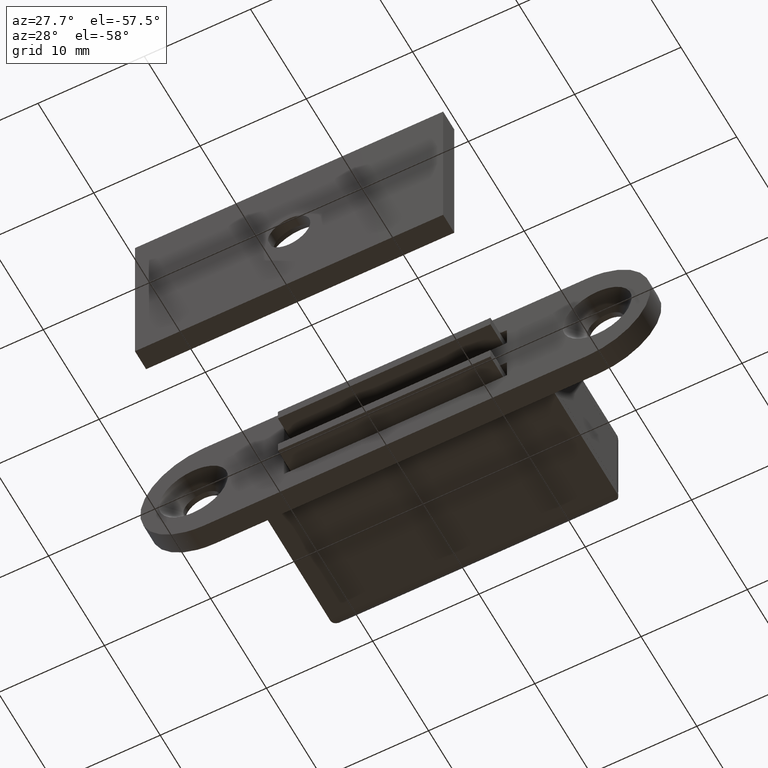
[diagram: clean part render]
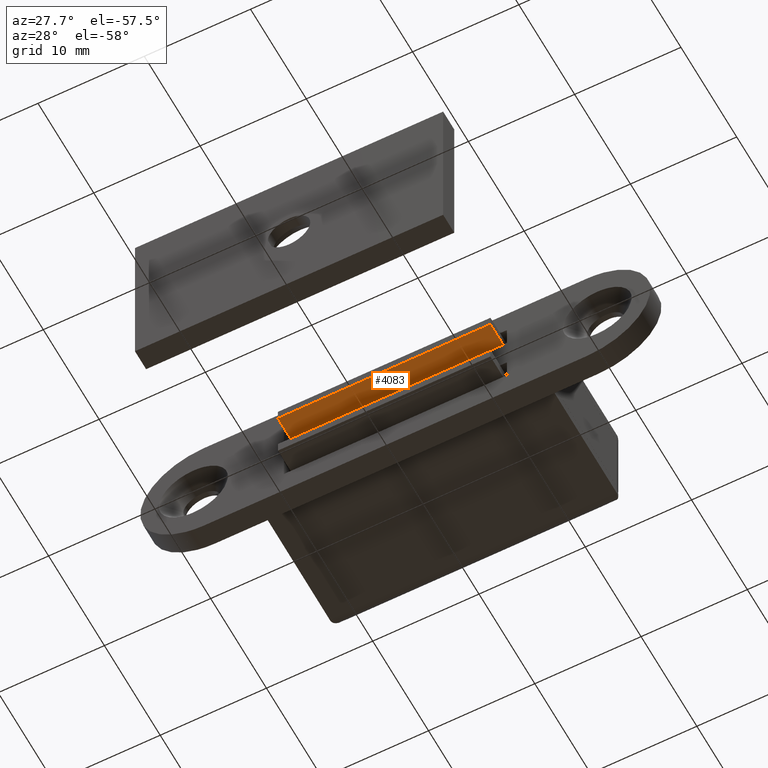
[diagram: same view with one face highlighted and labeled with its STEP entity id]
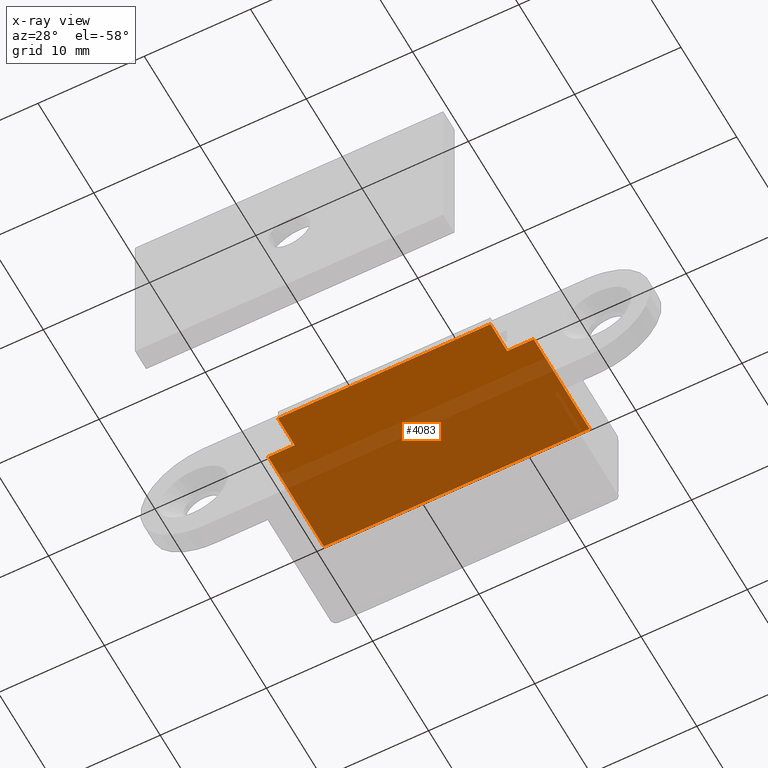
[diagram: x-ray of the same camera — body ghosted, the highlighted face saturated]
A machine part, auxiliary view. The second image highlights one B-rep face of the part: STEP entity #4083.
The next image is the same camera in x-ray: the body ghosted, the highlighted face saturated — about 63% of this face is hidden behind the body in this view.
In plain terms, the highlighted face is a freeform B-spline surface patch.
Its self-contained STEP definition (entity closure, byte-faithful):
#4020=CARTESIAN_POINT('',(-13.748749751745160,-3.350650025196627,1.999992000000000));
#4021=CARTESIAN_POINT('',(13.748746422297311,-3.350650025196627,1.999992000000000));
#4022=CARTESIAN_POINT('',(-13.748749751745160,-17.649350323490641,1.999992000000000));
#4023=CARTESIAN_POINT('',(13.748746422297311,-17.649350323490641,1.999992000000000));
#4024=B_SPLINE_SURFACE_WITH_KNOTS('',1,1,((#4020,#4022),(#4021,#4023)),.UNSPECIFIED.,.F.,.F.,.U.,(2,2),(2,2),(0.0,27.497496174042460),(0.0,14.298700298294021),.UNSPECIFIED.);
#4025=CARTESIAN_POINT('',(10.0,-14.0,1.999992000000000));
#4026=VERTEX_POINT('',#4025);
#4027=CARTESIAN_POINT('',(10.0,-17.0,1.999992000000000));
#4028=VERTEX_POINT('',#4027);
#4029=CARTESIAN_POINT('',(10.0,-14.0,1.999992000000000));
#4030=CARTESIAN_POINT('',(10.0,-17.0,1.999992000000000));
#4031=QUASI_UNIFORM_CURVE('',1,(#4029,#4030),.UNSPECIFIED.,.F.,.U.);
#4032=EDGE_CURVE('',#4026,#4028,#4031,.T.);
#4033=ORIENTED_EDGE('',*,*,#4032,.T.);
#4034=CARTESIAN_POINT('',(-10.0,-17.0,1.999992000000000));
#4035=VERTEX_POINT('',#4034);
#4036=CARTESIAN_POINT('',(10.0,-17.0,1.999992000000000));
#4037=CARTESIAN_POINT('',(-10.0,-17.0,1.999992000000000));
#4038=QUASI_UNIFORM_CURVE('',1,(#4036,#4037),.UNSPECIFIED.,.F.,.U.);
#4039=EDGE_CURVE('',#4028,#4035,#4038,.T.);
#4040=ORIENTED_EDGE('',*,*,#4039,.T.);
#4041=CARTESIAN_POINT('',(-10.0,-14.0,1.999992000000000));
#4042=VERTEX_POINT('',#4041);
#4043=CARTESIAN_POINT('',(-10.0,-17.0,1.999992000000000));
#4044=CARTESIAN_POINT('',(-10.0,-14.0,1.999992000000000));
#4045=QUASI_UNIFORM_CURVE('',1,(#4043,#4044),.UNSPECIFIED.,.F.,.U.);
#4046=EDGE_CURVE('',#4035,#4042,#4045,.T.);
#4047=ORIENTED_EDGE('',*,*,#4046,.T.);
#4048=CARTESIAN_POINT('',(-12.500000000000000,-14.0,1.999992000000000));
#4049=VERTEX_POINT('',#4048);
#4050=CARTESIAN_POINT('',(-10.0,-14.0,1.999992000000000));
#4051=CARTESIAN_POINT('',(-12.500000000000000,-14.0,1.999992000000000));
#4052=QUASI_UNIFORM_CURVE('',1,(#4050,#4051),.UNSPECIFIED.,.F.,.U.);
#4053=EDGE_CURVE('',#4042,#4049,#4052,.T.);
#4054=ORIENTED_EDGE('',*,*,#4053,.T.);
#4055=CARTESIAN_POINT('',(-12.500000000000000,-4.000000000000100,1.999992000000000));
#4056=VERTEX_POINT('',#4055);
#4057=CARTESIAN_POINT('',(-12.500000000000000,-14.0,1.999992000000000));
#4058=CARTESIAN_POINT('',(-12.500000000000000,-4.000000000000100,1.999992000000000));
#4059=QUASI_UNIFORM_CURVE('',1,(#4057,#4058),.UNSPECIFIED.,.F.,.U.);
#4060=EDGE_CURVE('',#4049,#4056,#4059,.T.);
#4061=ORIENTED_EDGE('',*,*,#4060,.T.);
#4062=CARTESIAN_POINT('',(12.499995999999999,-4.000000000000100,1.999992000000000));
#4063=VERTEX_POINT('',#4062);
#4064=CARTESIAN_POINT('',(-12.500000000000000,-4.000000000000100,1.999992000000000));
#4065=CARTESIAN_POINT('',(12.499995999999999,-4.000000000000100,1.999992000000000));
#4066=QUASI_UNIFORM_CURVE('',1,(#4064,#4065),.UNSPECIFIED.,.F.,.U.);
#4067=EDGE_CURVE('',#4056,#4063,#4066,.T.);
#4068=ORIENTED_EDGE('',*,*,#4067,.T.);
#4069=CARTESIAN_POINT('',(12.499995999999999,-14.0,1.999992000000000));
#4070=VERTEX_POINT('',#4069);
#4071=CARTESIAN_POINT('',(12.499995999999999,-4.000000000000100,1.999992000000000));
#4072=CARTESIAN_POINT('',(12.499995999999999,-14.0,1.999992000000000));
#4073=QUASI_UNIFORM_CURVE('',1,(#4071,#4072),.UNSPECIFIED.,.F.,.U.);
#4074=EDGE_CURVE('',#4063,#4070,#4073,.T.);
#4075=ORIENTED_EDGE('',*,*,#4074,.T.);
#4076=CARTESIAN_POINT('',(12.499995999999999,-14.0,1.999992000000000));
#4077=CARTESIAN_POINT('',(10.0,-14.0,1.999992000000000));
#4078=QUASI_UNIFORM_CURVE('',1,(#4076,#4077),.UNSPECIFIED.,.F.,.U.);
#4079=EDGE_CURVE('',#4070,#4026,#4078,.T.);
#4080=ORIENTED_EDGE('',*,*,#4079,.T.);
#4081=EDGE_LOOP('',(#4033,#4040,#4047,#4054,#4061,#4068,#4075,#4080));
#4082=FACE_OUTER_BOUND('',#4081,.T.);
#4083=ADVANCED_FACE('',(#4082),#4024,.T.);